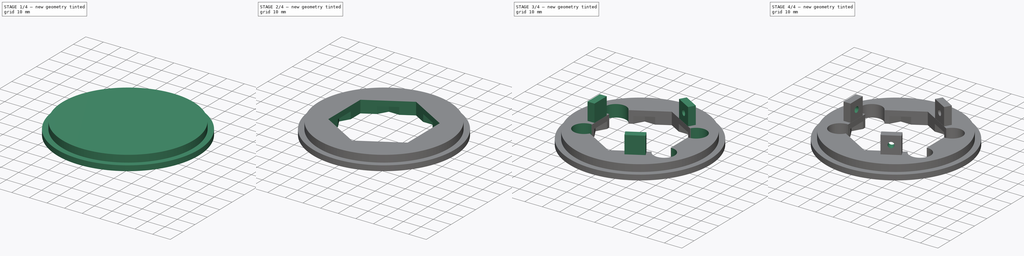
[diagram: build sequence overview — one tinted view per stage of 4, left to right]
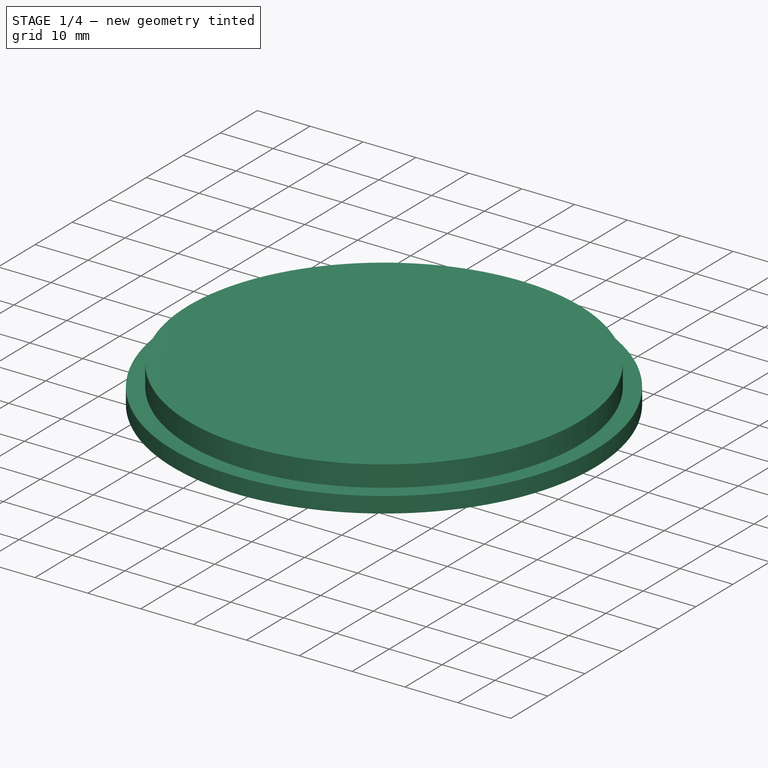
[diagram: stage 1 of 4 — iso view after this stage's code; geometry added in this stage tinted green]
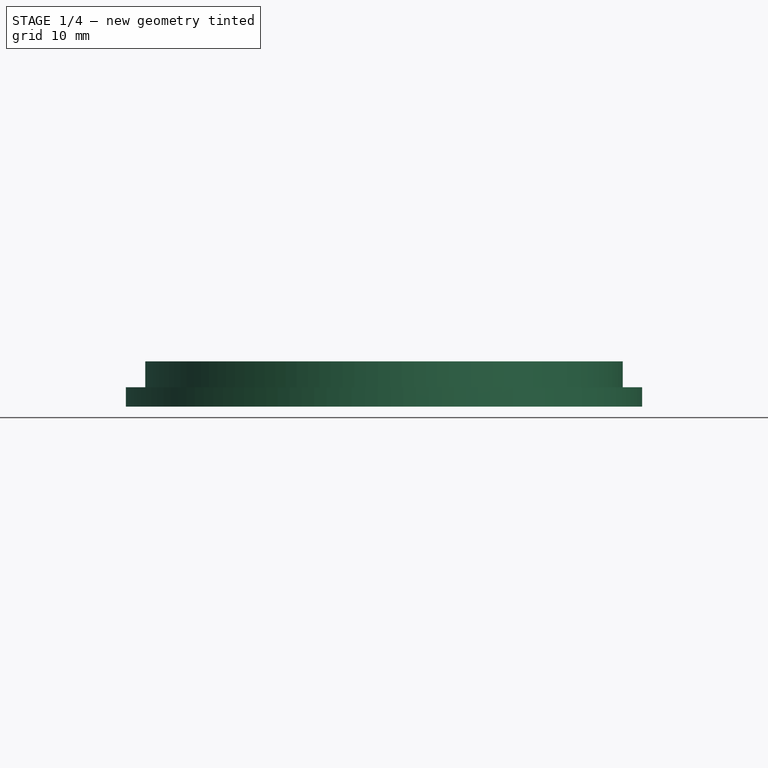
[diagram: stage 1 of 4 — front view after this stage's code; geometry added in this stage tinted green]
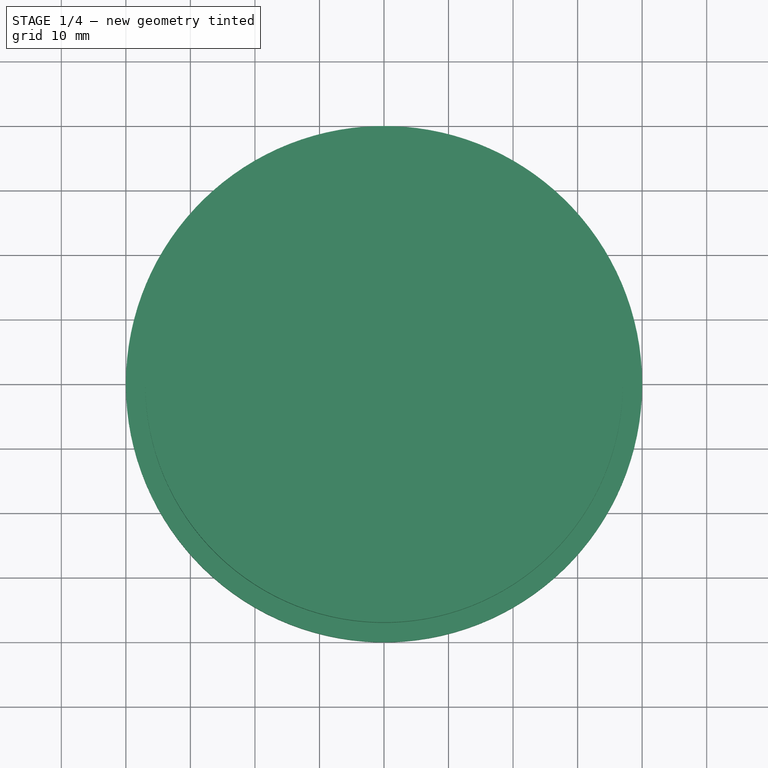
[diagram: stage 1 of 4 — top view after this stage's code; geometry added in this stage tinted green]
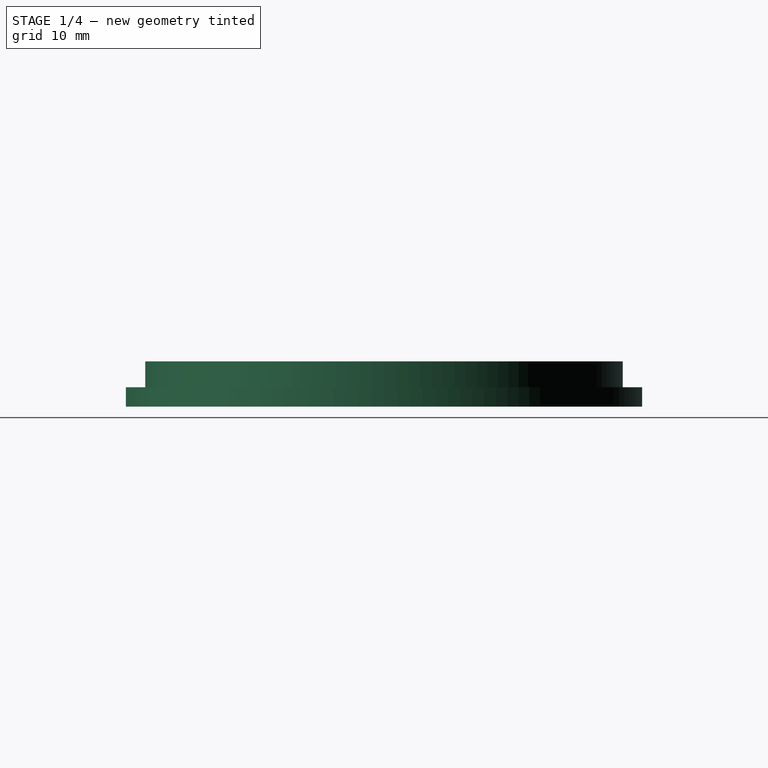
[diagram: stage 1 of 4 — right view after this stage's code; geometry added in this stage tinted green]
FCSTD DOCUMENT  (FreeCAD 0.21R33771 (Git))
Label: reactor-manifold-lid-v0.1
License: All rights reserved
LicenseURL: https://en.wikipedia.org/wiki/All_rights_reserved
objects: Sketcher::SketchObject×10, PartDesign::Pocket×6, PartDesign::Pad×3, PartDesign::Body×1
note: 29 computed .brp shape members not serialized (recipe doc carries the construction recipe); baked Part::Feature solids carry a one-line shape summary decoded from their .brp

FEATURE [Sketcher::SketchObject] Sketch
  FullyConstrained = true
  MapMode = 5
  Support = -> [XY_Plane]
  sketch-geometry (1):
    g0: Circle CenterX=0 CenterY=0 CenterZ=0 NormalX=0 NormalY=0 NormalZ=1 AngleXU=0 Radius=40
  constraints (2):
    c: Coincident(g0,g-1)
    c: Diameter(g0) = 80
FEATURE [PartDesign::Pad] Pad  label="Wide Cylinder"
  Direction = (0,0,1)
  Length = 3
  Length2 = 10
  Profile = -> Sketch
  ReferenceAxis = -> Sketch [N_Axis]
  Type = 0
FEATURE [Sketcher::SketchObject] Sketch001
  FullyConstrained = true
  MapMode = 5
  Placement = pos=(0,0,3) rot=(0,0,1;0rad)
  Support = -> [Pad]
  sketch-geometry (1):
    g0: Circle CenterX=0 CenterY=0 CenterZ=0 NormalX=0 NormalY=0 NormalZ=1 AngleXU=0 Radius=37
  constraints (2):
    c: Coincident(g0,g-1)
    c: Diameter(g0) = 74
FEATURE [PartDesign::Pad] Pad001  label="Inner Cylinder"
  BaseFeature = -> Pad
  Direction = (0,0,1)
  Length = 4
  Length2 = 10
  Profile = -> Sketch001
  ReferenceAxis = -> Sketch001 [N_Axis]
  Type = 0
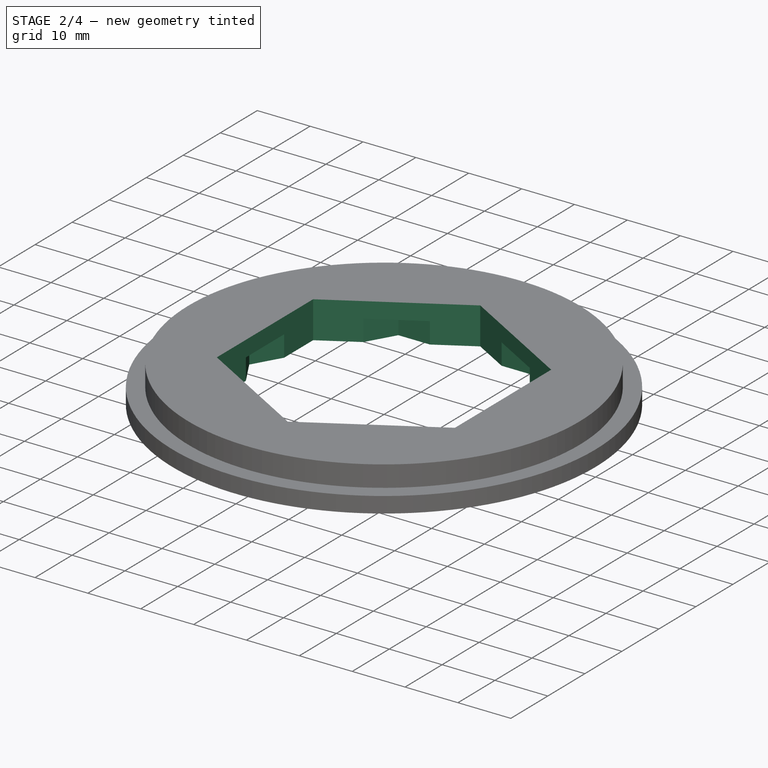
[diagram: stage 2 of 4 — iso view after this stage's code; geometry added in this stage tinted green]
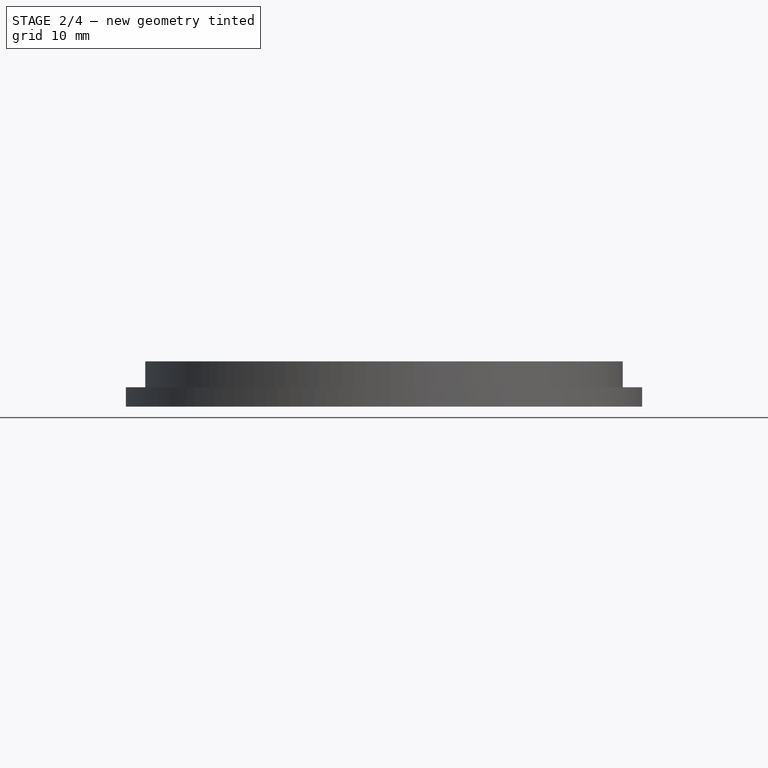
[diagram: stage 2 of 4 — front view after this stage's code; geometry added in this stage tinted green]
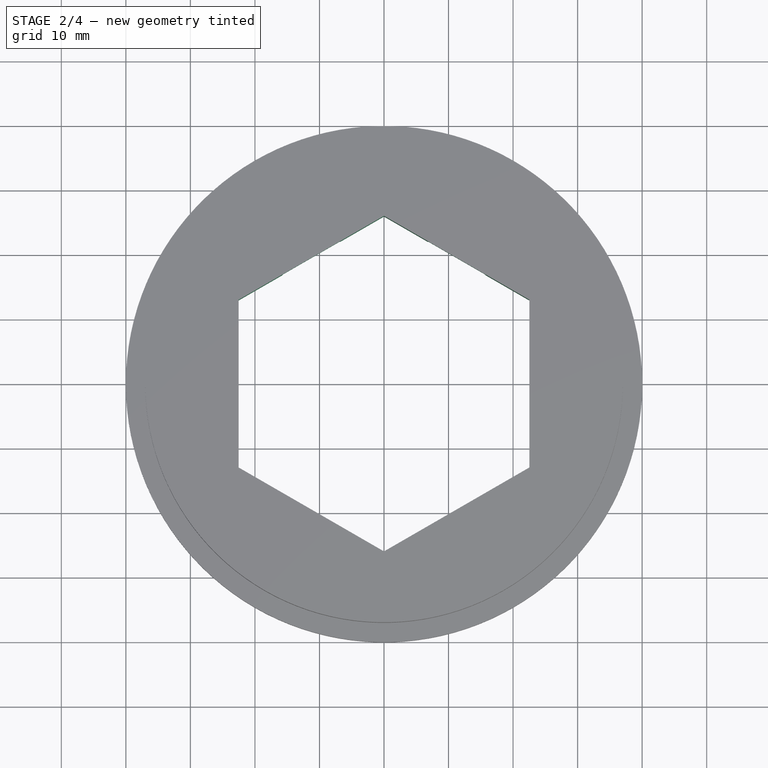
[diagram: stage 2 of 4 — top view after this stage's code; geometry added in this stage tinted green]
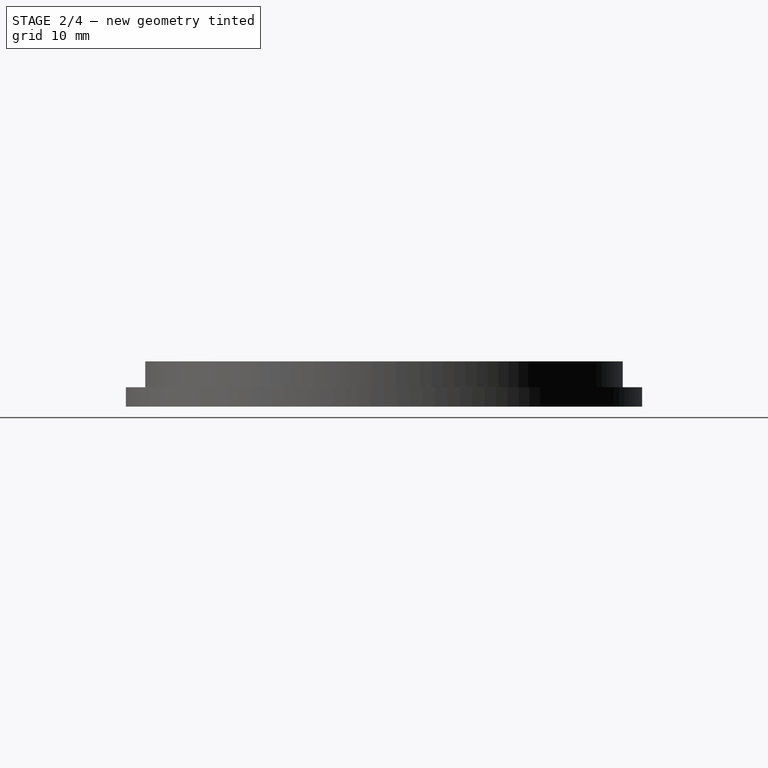
[diagram: stage 2 of 4 — right view after this stage's code; geometry added in this stage tinted green]
FEATURE [Sketcher::SketchObject] Sketch002
  FullyConstrained = true
  MapMode = 5
  Placement = pos=(0,0,7) rot=(0,0,1;0rad)
  Support = -> [Pad001]
  sketch-geometry (7):
    g0: LineSegment StartX=22.5167 StartY=13 StartZ=0 EndX=-3.6e-15 EndY=26 EndZ=0
    g1: LineSegment StartX=-3.6e-15 StartY=26 StartZ=0 EndX=-22.5167 EndY=13 EndZ=0
    g2: LineSegment StartX=-22.5167 StartY=13 StartZ=0 EndX=-22.5167 EndY=-13 EndZ=0
    g3: LineSegment StartX=-22.5167 StartY=-13 StartZ=0 EndX=0 EndY=-26 EndZ=0
    g4: LineSegment StartX=0 StartY=-26 StartZ=0 EndX=22.5167 EndY=-13 EndZ=0
    g5: LineSegment StartX=22.5167 StartY=-13 StartZ=0 EndX=22.5167 EndY=13 EndZ=0
    g6: Circle CenterX=0 CenterY=0 CenterZ=0 NormalX=0 NormalY=0 NormalZ=1 AngleXU=0 Radius=26
  constraints (16):
    c: Coincident(g0,g1)
    c: Coincident(g1,g2)
    c: Coincident(g2,g3)
    c: Coincident(g3,g4)
    c: Coincident(g4,g5)
    c: Coincident(g5,g0)
    c: Equal(g0, g1-g5) x5
    c: PointOnObject(g0,g6)
    c: PointOnObject(g1,g6)
    c: PointOnObject(g2,g6)
    c: PointOnObject(g3,g6)
    c: PointOnObject(g4,g6)
    c: PointOnObject(g5,g6)
    c: Coincident(g6,g-1)
    c: Distance(g0,g3) = 52
    c: DistanceX(g6,g3) = 0
FEATURE [PartDesign::Pocket] Pocket  label="Through Hexagon"
  BaseFeature = -> Pad001
  Direction = (0,0,-1)
  Length = 5
  Length2 = 5
  Profile = -> Sketch002
  ReferenceAxis = -> Sketch002 [N_Axis]
  Type = 1
FEATURE [Sketcher::SketchObject] Sketch003  label="Circle Around Hexagon"
  FullyConstrained = true
  MapMode = 5
  Placement = pos=(0,0,0) rot=(1,0,0;3.14159rad)
  Support = -> [Pocket]
  sketch-geometry (1):
    g0: Circle CenterX=0 CenterY=0 CenterZ=0 NormalX=0 NormalY=0 NormalZ=1 AngleXU=0 Radius=26
  constraints (2):
    c: Coincident(g0,g-1)
    c: Diameter(g0) = 52
FEATURE [Sketcher::SketchObject] Sketch006
  FullyConstrained = true
  MapMode = 5
  Placement = pos=(0,0,0) rot=(1,0,0;3.14159rad)
  Support = -> [Pocket]
  sketch-geometry (7):
    g0: LineSegment StartX=-12.75 StartY=22.0836 StartZ=0 EndX=-25.5 EndY=0 EndZ=0
    g1: LineSegment StartX=-25.5 StartY=0 StartZ=0 EndX=-12.75 EndY=-22.0836 EndZ=0
    g2: LineSegment StartX=-12.75 StartY=-22.0836 StartZ=0 EndX=12.75 EndY=-22.0836 EndZ=0
    g3: LineSegment StartX=12.75 StartY=-22.0836 StartZ=0 EndX=25.5 EndY=1.2861e-12 EndZ=0
    g4: LineSegment StartX=25.5 StartY=1.2861e-12 StartZ=0 EndX=12.75 EndY=22.0836 EndZ=0
    g5: LineSegment StartX=12.75 StartY=22.0836 StartZ=0 EndX=-12.75 EndY=22.0836 EndZ=0
    g6: Circle CenterX=0 CenterY=0 CenterZ=0 NormalX=0 NormalY=0 NormalZ=1 AngleXU=0 Radius=25.5
  constraints (16):
    c: Coincident(g0,g1)
    c: Coincident(g1,g2)
    c: Coincident(g2,g3)
    c: Coincident(g3,g4)
    c: Coincident(g4,g5)
    c: Coincident(g5,g0)
    c: Equal(g0, g1-g5) x5
    c: PointOnObject(g0,g6)
    c: PointOnObject(g1,g6)
    c: PointOnObject(g2,g6)
    c: PointOnObject(g3,g6)
    c: PointOnObject(g4,g6)
    c: PointOnObject(g5,g6)
    c: Coincident(g6,g-1)
    c: Distance(g0,g2) = 51
    c: DistanceY(g0,g6) = 0
FEATURE [PartDesign::Pocket] Pocket001  label="Hexagonal Notches"
  BaseFeature = -> Pocket
  Direction = (0,0,1)
  Length = 4
  Length2 = 5
  Profile = -> Sketch006
  ReferenceAxis = -> Sketch006 [N_Axis]
  Type = 0
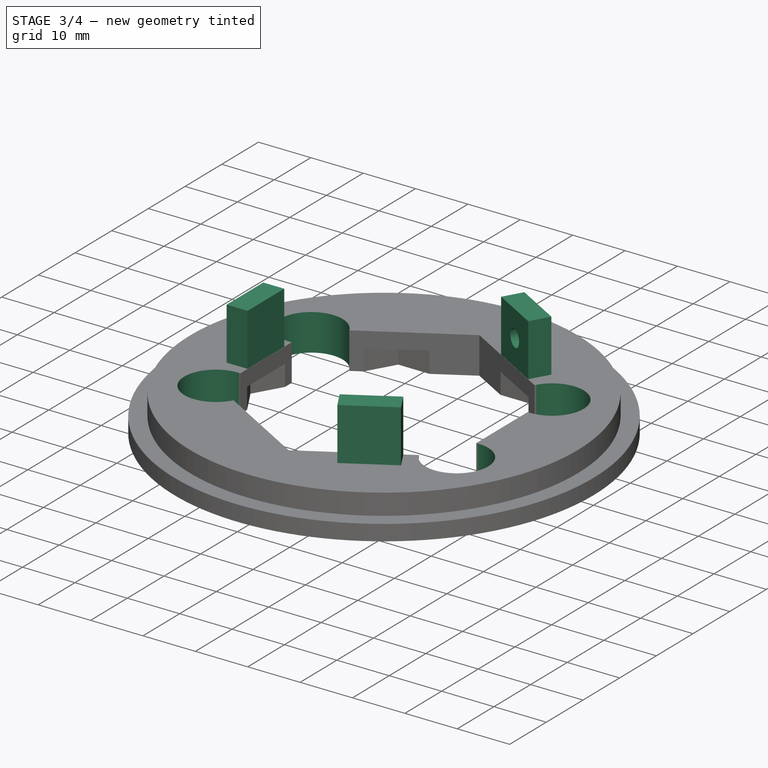
[diagram: stage 3 of 4 — iso view after this stage's code; geometry added in this stage tinted green]
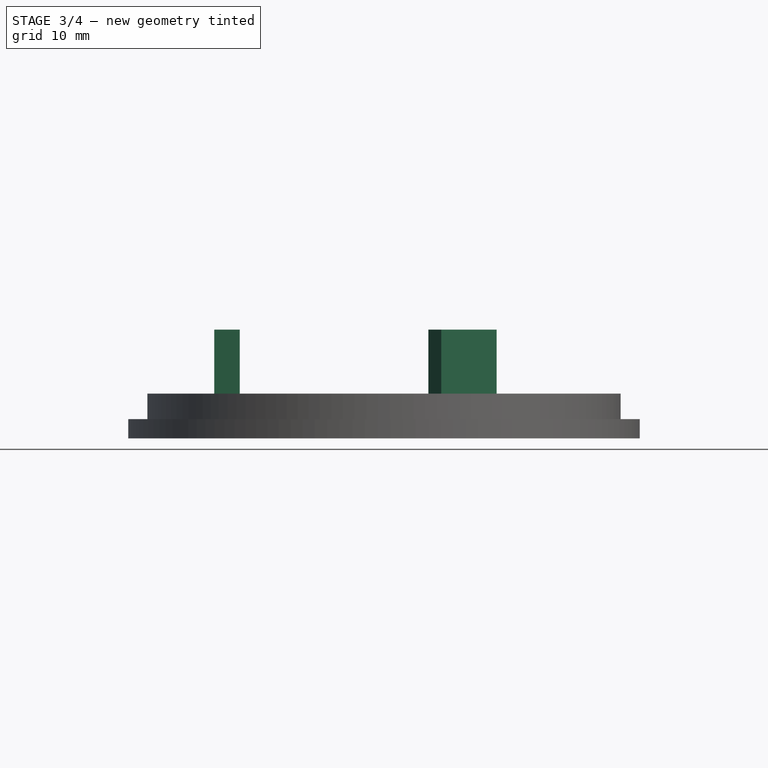
[diagram: stage 3 of 4 — front view after this stage's code; geometry added in this stage tinted green]
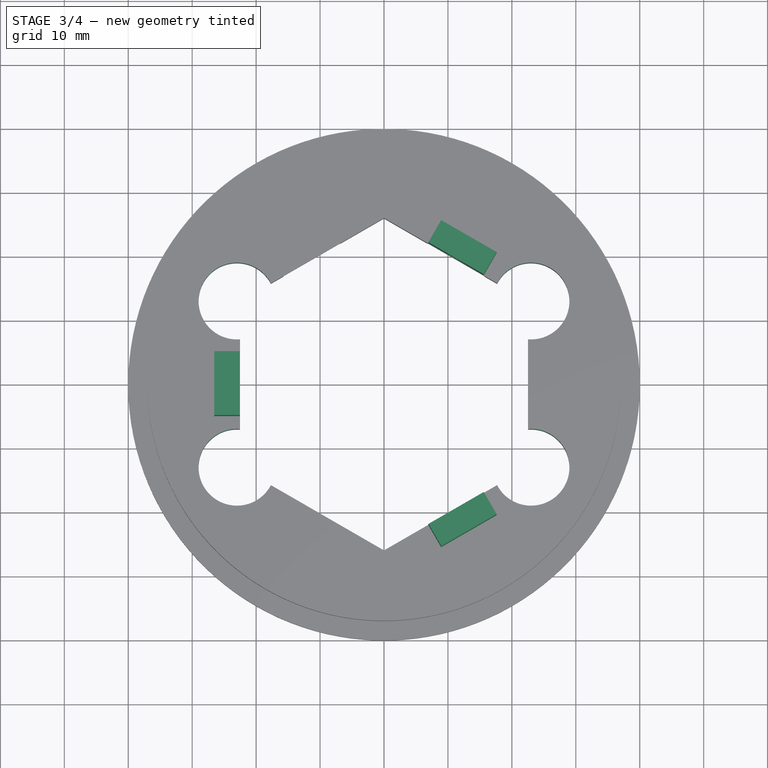
[diagram: stage 3 of 4 — top view after this stage's code; geometry added in this stage tinted green]
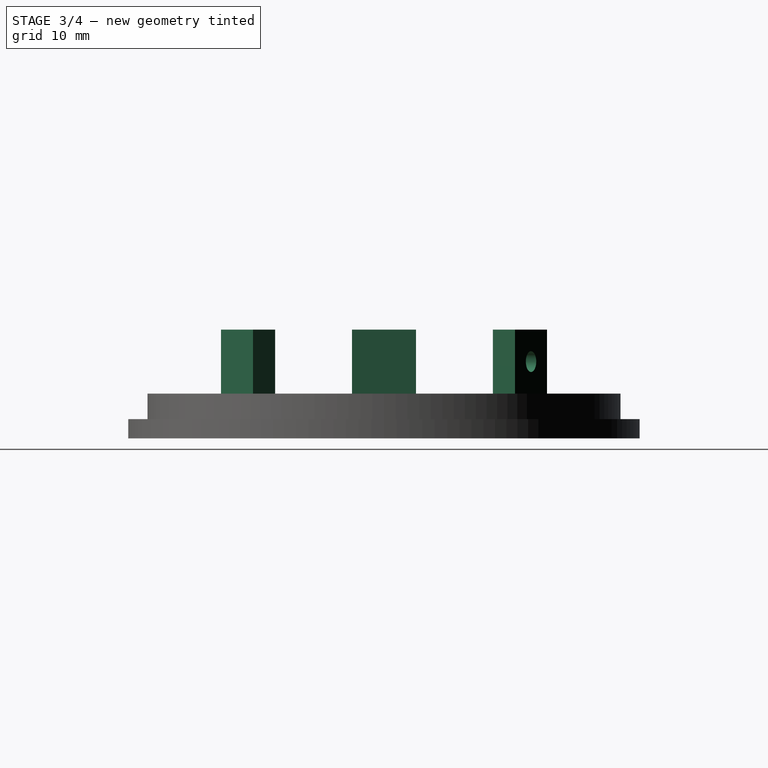
[diagram: stage 3 of 4 — right view after this stage's code; geometry added in this stage tinted green]
FEATURE [Sketcher::SketchObject] Sketch007
  FullyConstrained = true
  MapMode = 5
  Placement = pos=(0,0,0) rot=(1,0,0;3.14159rad)
  Support = -> [Pocket001]
  sketch-geometry (4):
    g0: Circle CenterX=23 CenterY=13 CenterZ=0 NormalX=0 NormalY=0 NormalZ=1 AngleXU=0 Radius=6
    g1: Circle CenterX=23 CenterY=-13 CenterZ=0 NormalX=0 NormalY=0 NormalZ=1 AngleXU=0 Radius=6
    g2: Circle CenterX=-23 CenterY=-13 CenterZ=0 NormalX=0 NormalY=0 NormalZ=1 AngleXU=0 Radius=6
    g3: Circle CenterX=-23 CenterY=13 CenterZ=0 NormalX=0 NormalY=0 NormalZ=1 AngleXU=0 Radius=6
  constraints (9):
    c: Equal(g2,g3)
    c: Equal(g2,g0)
    c: Equal(g2,g1)
    c: Diameter(g2) = 12
    c: Symmetric(g3,g1,g-1)
    c: Symmetric(g2,g0,g-1)
    c: DistanceY(g-1,g0) = 13
    c: DistanceX(g-1,g0) = 23
    c: Symmetric(g3,g0,g-2)
FEATURE [PartDesign::Pocket] Pocket002  label="Temp Control Holes"
  BaseFeature = -> Pocket001
  Direction = (0,0,1)
  Length = 5
  Length2 = 5
  Profile = -> Sketch007
  ReferenceAxis = -> Sketch007 [N_Axis]
  Type = 1
FEATURE [Sketcher::SketchObject] Sketch008
  FullyConstrained = true
  MapMode = 5
  Placement = pos=(0,0,7) rot=(0,0,1;0rad)
  Support = -> [Pocket002]
  sketch-geometry (12):
    g0: LineSegment StartX=-26.55 StartY=5 StartZ=0 EndX=-22.55 EndY=5 EndZ=0
    g1: LineSegment StartX=-22.55 StartY=5 StartZ=0 EndX=-22.55 EndY=-5 EndZ=0
    g2: LineSegment StartX=-22.55 StartY=-5 StartZ=0 EndX=-26.55 EndY=-5 EndZ=0
    g3: LineSegment StartX=-26.55 StartY=-5 StartZ=0 EndX=-26.55 EndY=5 EndZ=0
    g4: LineSegment StartX=6.94606 StartY=22.0309 StartZ=0 EndX=15.6063 EndY=17.0309 EndZ=0
    g5: LineSegment StartX=15.6063 StartY=17.0309 StartZ=0 EndX=17.6063 EndY=20.495 EndZ=0
    g6: LineSegment StartX=17.6063 StartY=20.495 StartZ=0 EndX=8.94606 EndY=25.495 EndZ=0
    g7: LineSegment StartX=8.94606 StartY=25.495 StartZ=0 EndX=6.94606 EndY=22.0309 EndZ=0
    g8: LineSegment StartX=15.6063 StartY=-17.0309 StartZ=0 EndX=6.94606 EndY=-22.0309 EndZ=0
    g9: LineSegment StartX=6.94606 StartY=-22.0309 StartZ=0 EndX=8.94606 EndY=-25.495 EndZ=0
    g10: LineSegment StartX=8.94606 StartY=-25.495 StartZ=0 EndX=17.6063 EndY=-20.495 EndZ=0
    g11: LineSegment StartX=17.6063 StartY=-20.495 StartZ=0 EndX=15.6063 EndY=-17.0309 EndZ=0
  constraints (34):
    c: Coincident(g0,g1)
    c: Coincident(g1,g2)
    c: Coincident(g2,g3)
    c: Coincident(g3,g0)
    c: Horizontal(g0)
    c: Horizontal(g2)
    c: Vertical(g3)
    c: DistanceY(g2,g0) = 10
    c: DistanceX(g0,g0) = 4
    c: DistanceX(g0,g-1) = 22.55
    c: Symmetric(g0,g1,g-1)
    c: Coincident(g4,g5)
    c: Coincident(g5,g6)
    c: Coincident(g6,g7)
    c: Coincident(g7,g4)
    c: Coincident(g8,g9)
    c: Coincident(g9,g10)
    c: Coincident(g10,g11)
    c: Coincident(g11,g8)
    c: Angle(g1,g4) = 1.0472
    c: Angle(g8,g1) = 1.0472
    c: Equal(g3,g6)
    c: Equal(g6,g10)
    c: Equal(g4,g6)
    c: Equal(g6,g8)
    c: Equal(g0,g7)
    c: Equal(g7,g11)
    c: Perpendicular(g9,g8)
    c: Perpendicular(g5,g4)
    c: Equal(g5,g7)
    c: Equal(g11,g9)
    c: Distance(g-1,g4) = 23.1
    c: Symmetric(g8,g4,g-1)
    c: Distance(g-1,g4) = 23.1
FEATURE [PartDesign::Pad] Pad002  label="Neck Screw Tabs"
  BaseFeature = -> Pocket002
  Direction = (0,0,1)
  Length = 10
  Length2 = 10
  Profile = -> Sketch008
  ReferenceAxis = -> Sketch008 [N_Axis]
  Type = 0
FEATURE [Sketcher::SketchObject] Sketch009
  FullyConstrained = true
  MapMode = 5
  Placement = pos=(13.2762,22.995,0) rot=(0.186157,0.694747,0.694747;2.77349rad)
  Support = -> [Pad002]
  sketch-geometry (1):
    g0: Circle CenterX=0 CenterY=12 CenterZ=0 NormalX=0 NormalY=0 NormalZ=1 AngleXU=0 Radius=1.625
  constraints (3):
    c: PointOnObject(g0,g-2)
    c: DistanceY(g-1,g0) = 12
    c: Diameter(g0) = 3.25
FEATURE [PartDesign::Pocket] Pocket003
  BaseFeature = -> Pad002
  Direction = (-0.5,-0.866025,0)
  Length = 5
  Length2 = 5
  Profile = -> Sketch009
  ReferenceAxis = -> Sketch009 [N_Axis]
  Type = 0
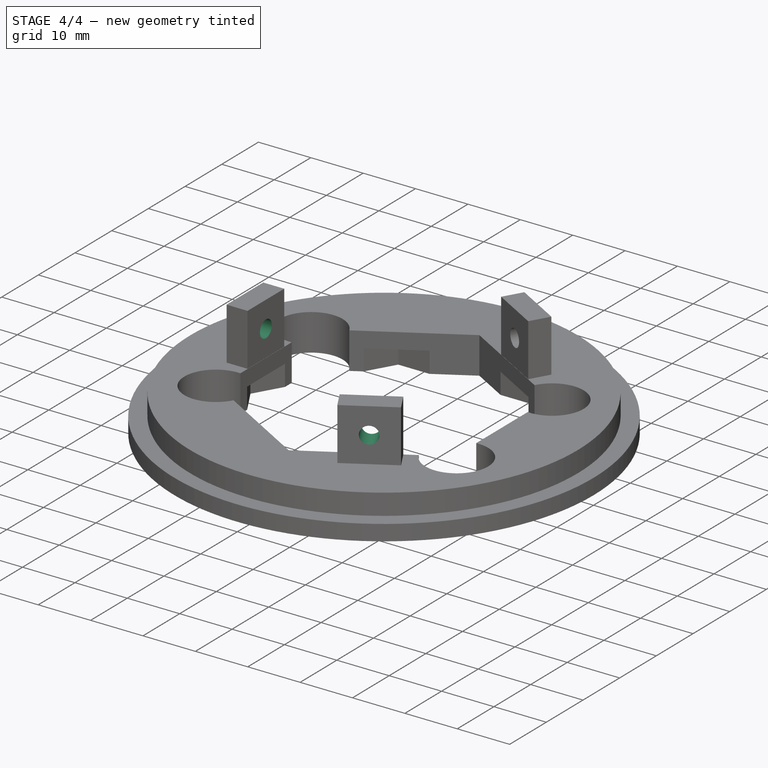
[diagram: stage 4 of 4 — iso view after this stage's code; geometry added in this stage tinted green]
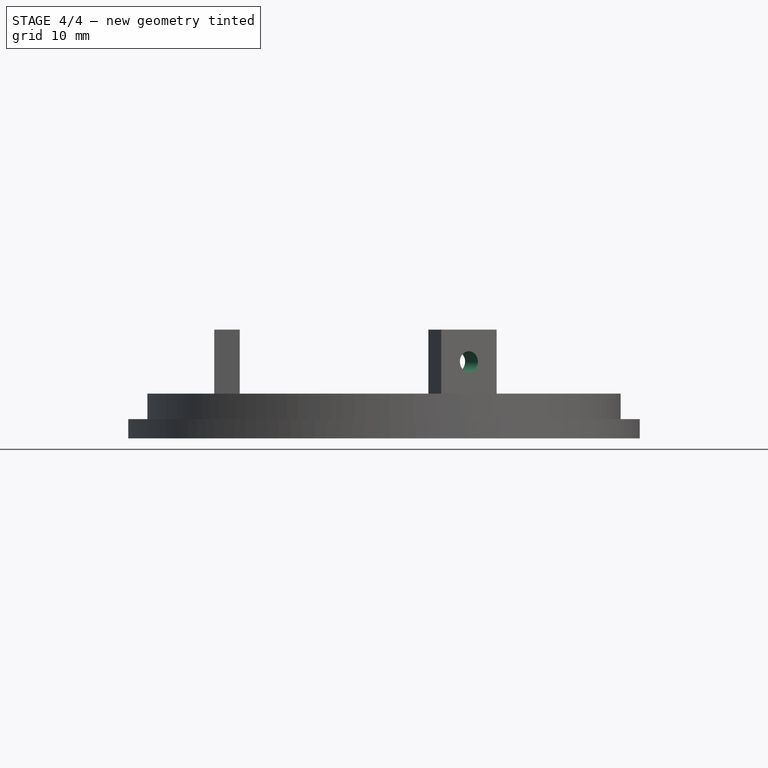
[diagram: stage 4 of 4 — front view after this stage's code; geometry added in this stage tinted green]
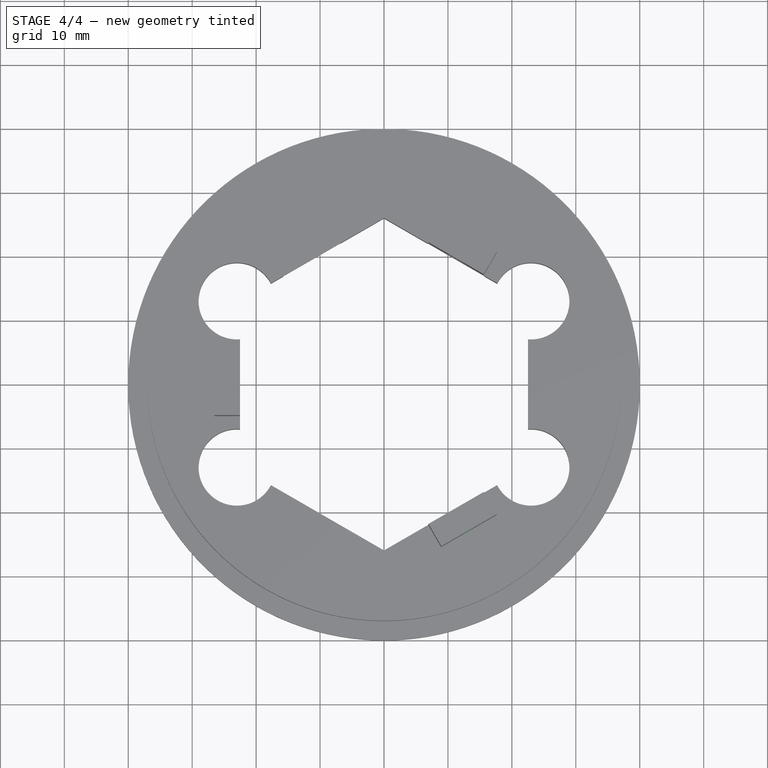
[diagram: stage 4 of 4 — top view after this stage's code; geometry added in this stage tinted green]
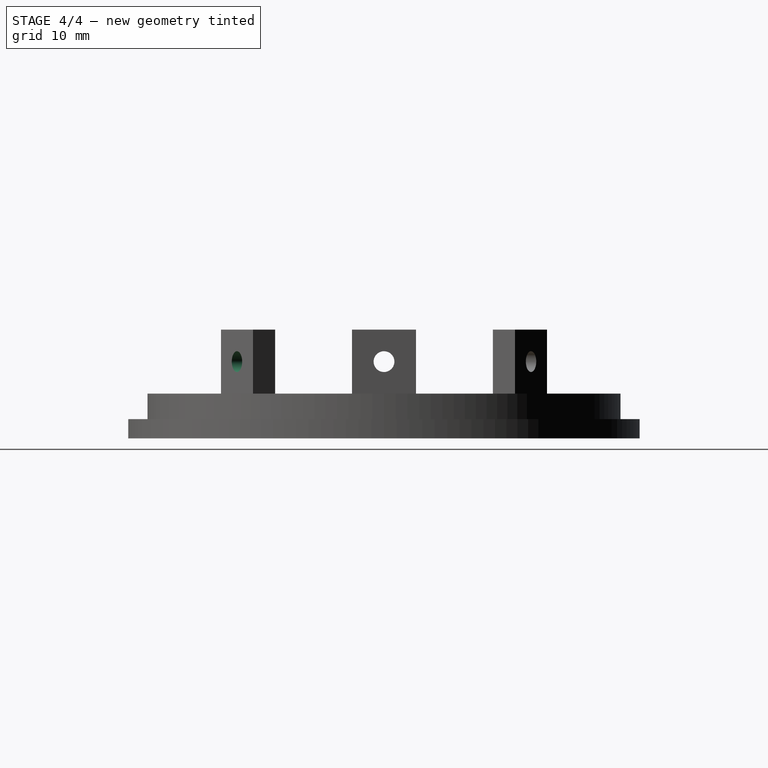
[diagram: stage 4 of 4 — right view after this stage's code; geometry added in this stage tinted green]
FEATURE [Sketcher::SketchObject] Sketch010
  FullyConstrained = true
  MapMode = 5
  Placement = pos=(-26.55,0,0) rot=(0.57735,-0.57735,-0.57735;2.0944rad)
  Support = -> [Pocket003]
  sketch-geometry (1):
    g0: Circle CenterX=0 CenterY=12 CenterZ=0 NormalX=0 NormalY=0 NormalZ=1 AngleXU=0 Radius=1.625
  constraints (3):
    c: PointOnObject(g0,g-2)
    c: Diameter(g0) = 3.25
    c: DistanceY(g-1,g0) = 12
FEATURE [PartDesign::Pocket] Pocket004
  BaseFeature = -> Pocket003
  Direction = (1,0,0)
  Length = 5
  Length2 = 5
  Profile = -> Sketch010
  ReferenceAxis = -> Sketch010 [N_Axis]
  Type = 0
FEATURE [Sketcher::SketchObject] Sketch011
  FullyConstrained = true
  MapMode = 5
  Placement = pos=(13.2762,-22.995,0) rot=(0.935113,0.250563,0.250563;1.63783rad)
  Support = -> [Pocket004]
  sketch-geometry (1):
    g0: Circle CenterX=0 CenterY=12 CenterZ=0 NormalX=0 NormalY=0 NormalZ=1 AngleXU=0 Radius=1.625
  constraints (3):
    c: PointOnObject(g0,g-2)
    c: Diameter(g0) = 3.25
    c: DistanceY(g-1,g0) = 12
FEATURE [PartDesign::Pocket] Pocket005
  BaseFeature = -> Pocket004
  Direction = (-0.5,0.866025,1e-16)
  Length = 5
  Length2 = 5
  Profile = -> Sketch011
  ReferenceAxis = -> Sketch011 [N_Axis]
  Type = 0
FEATURE [PartDesign::Body] Body
  Group = -> [Sketch,Pad,Sketch001,Pad001,Sketch002,Pocket,Sketch003,Sketch006,Pocket001,Sketch007,Pocket002,Sketch008,Pad002,Sketch009,Pocket003,Sketch010,Pocket004,Sketch011,Pocket005]
  Origin = -> Origin
  Tip = -> Pocket005
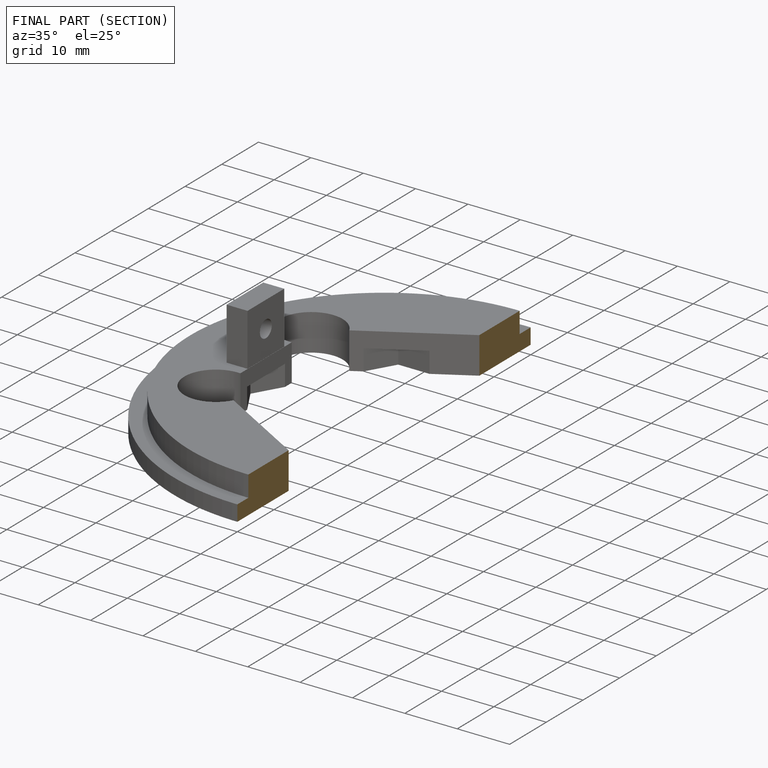
[diagram: finished part — half-section view (interior)]
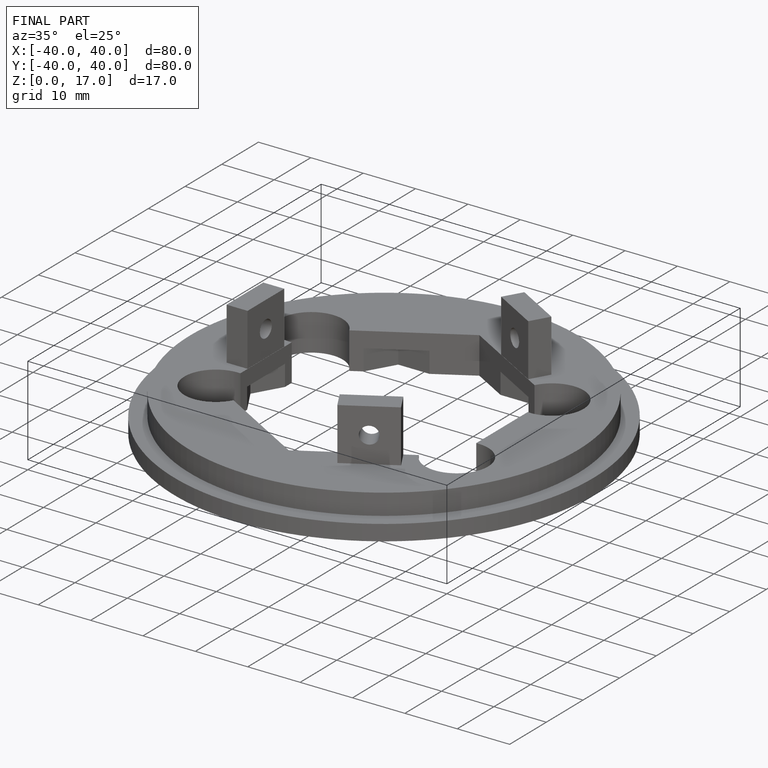
[diagram: finished part — iso view with bounding-box wireframe]
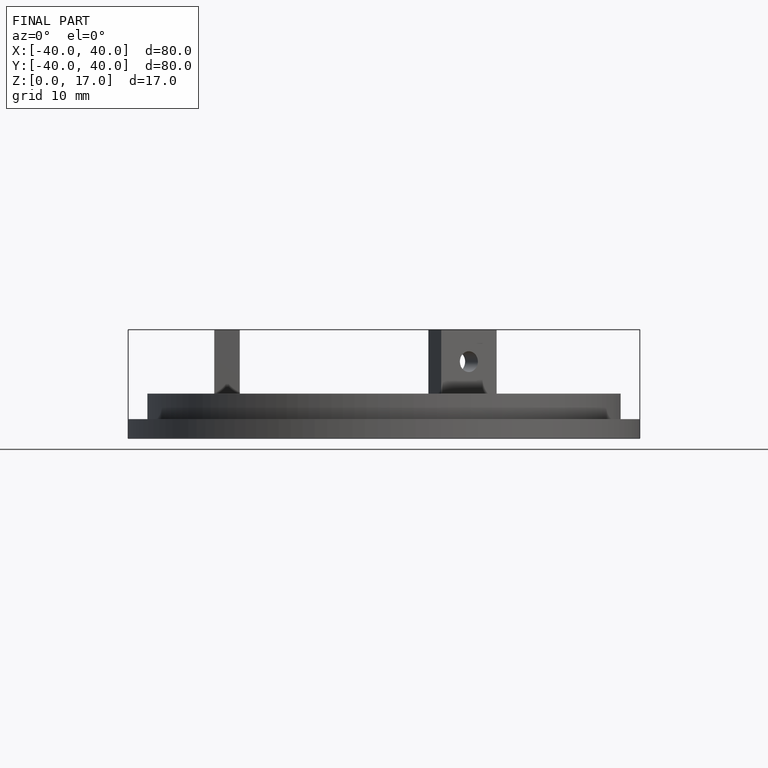
[diagram: finished part — front view with bounding-box wireframe]
